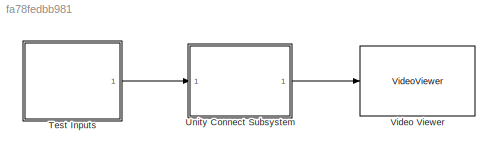
MODEL slx_fa78fedbb981
KIND model
CONFIG AbsTol = auto
CONFIG EnableMultiTasking = off
CONFIG FixedStep = auto
CONFIG MaxStep = auto
CONFIG MinStep = auto
CONFIG RelTol = 1e-3
CONFIG SampleTimeConstraint = Unconstrained
CONFIG SolverName = VariableStepAuto
CONFIG StartTime = 0.0
CONFIG StopTime = 10.0
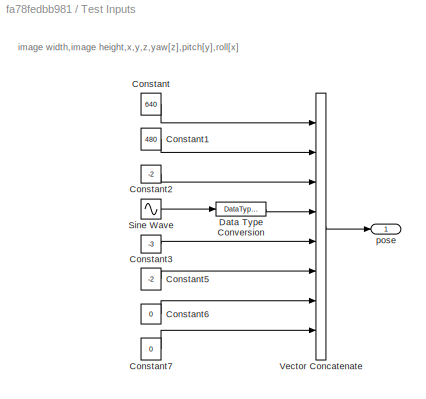
BLOCK [SubSystem] Test Inputs
  Ports = [0, 1]
  RequestExecContextInheritance = off
BLOCK [Constant] Test Inputs/Constant
  OutDataTypeStr = single
  Value = 640
BLOCK [Constant] Test Inputs/Constant1
  OutDataTypeStr = single
  Value = 480
BLOCK [Constant] Test Inputs/Constant2
  OutDataTypeStr = single
  Value = -2
BLOCK [Constant] Test Inputs/Constant3
  OutDataTypeStr = single
  Value = -3
BLOCK [Constant] Test Inputs/Constant5
  OutDataTypeStr = single
  Value = -2
BLOCK [Constant] Test Inputs/Constant6
  OutDataTypeStr = single
  Value = 0
BLOCK [Constant] Test Inputs/Constant7
  OutDataTypeStr = single
  Value = 0
BLOCK [DataTypeConversion] Test Inputs/Data Type Conversion
  OutDataTypeStr = single
  RndMeth = Floor
  SaturateOnIntegerOverflow = off
BLOCK [Sin] Test Inputs/Sine Wave
  Ports = [0, 1]
  SampleTime = 0.01
BLOCK [Concatenate] Test Inputs/Vector Concatenate
  NumInputs = 8
  Ports = [8, 1]
BLOCK [Outport] Test Inputs/pose
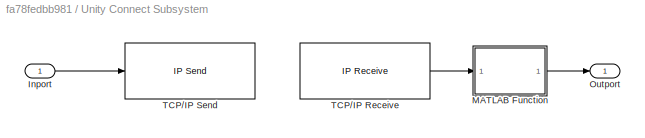
BLOCK [SubSystem] Unity Connect Subsystem
  Ports = [1, 1]
  Priority = 2
  RequestExecContextInheritance = off
BLOCK [Inport] Unity Connect Subsystem/Inport
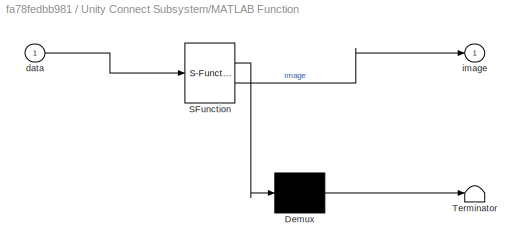
BLOCK [SubSystem] Unity Connect Subsystem/MATLAB Function
  ErrorFcn = Stateflow.Translate.translate
  PermitHierarchicalResolution = ExplicitOnly
  Ports = [1, 1]
  RequestExecContextInheritance = off
  SFBlockType = MATLAB Function
  TreatAsAtomicUnit = on
BLOCK [Demux] Unity Connect Subsystem/MATLAB Function/ Demux 
  Outputs = 1
  Ports = [1, 1]
BLOCK [S-Function] Unity Connect Subsystem/MATLAB Function/ SFunction 
  EnableBusSupport = on
  FunctionName = sf_sfun
  PortCounts = [1 2]
  Ports = [1, 2]
  SFcnIsStateOwnerBlock = off
  SFunctionDeploymentMode = off
  Tag = Stateflow S-Function 2
BLOCK [Terminator] Unity Connect Subsystem/MATLAB Function/ Terminator 
BLOCK [Inport] Unity Connect Subsystem/MATLAB Function/data
BLOCK [Outport] Unity Connect Subsystem/MATLAB Function/image
BLOCK [Outport] Unity Connect Subsystem/Outport
BLOCK [Reference] Unity Connect Subsystem/TCP//IP Receive  REF=instrumentlib/TCP//IP Receive
  Description = receive data from Unity, must set priorty to 2
  Ports = [0, 1]
  Priority = 2
  SourceBlock = instrumentlib/TCP//IP Receive
  SourceProductBaseCode = IC
  SourceType = instrument.system.TCPIPReceive
BLOCK [Reference] Unity Connect Subsystem/TCP//IP Send  REF=instrumentlib/TCP//IP Send
  Description = send data to Unity, must set priority to 1
  Ports = [1]
  Priority = 1
  SourceBlock = instrumentlib/TCP//IP Send
  SourceProductBaseCode = IC
  SourceType = instrument.system.TCPIPSend
BLOCK [VideoViewer] Video Viewer
  FigPos = [2190 892 646 535]
  Ports = [1]
  ScopeSpecificationString = vipscopes.VideoViewerScopeCfg('CurrentConfiguration', extmgr.ConfigurationSet(extmgr.Configuration('Core','General UI',true),extmgr.Configuration('Core','Source UI',true),extmgr.Configuration('Sources','WiredSimulink',true),extmgr.Configuration('Visuals','Video',true),extmgr.Configuration('Tools','Image Navigation Tools',true),extmgr.Configuration('Tools','Image Tool',true),extmgr.Configuration('T...<+76ch>
ANNOTATION Test Inputs: image width,image height,x,y,z,yaw[z],pitch[y],roll[x]
LINE Test Inputs/Constant1:1 -> Test Inputs/Vector Concatenate:2
LINE Test Inputs/Constant2:1 -> Test Inputs/Vector Concatenate:3
LINE Test Inputs/Constant3:1 -> Test Inputs/Vector Concatenate:5
LINE Test Inputs/Constant5:1 -> Test Inputs/Vector Concatenate:6
LINE Test Inputs/Constant6:1 -> Test Inputs/Vector Concatenate:7
LINE Test Inputs/Constant7:1 -> Test Inputs/Vector Concatenate:8
LINE Test Inputs/Constant:1 -> Test Inputs/Vector Concatenate:1
LINE Test Inputs/Data Type Conversion:1 -> Test Inputs/Vector Concatenate:4
LINE Test Inputs/Sine Wave:1 -> Test Inputs/Data Type Conversion:1
LINE Test Inputs/Vector Concatenate:1 -> Test Inputs/pose:1
LINE Test Inputs:1 -> Unity Connect Subsystem:1
LINE Unity Connect Subsystem/Inport:1 -> Unity Connect Subsystem/TCP//IP Send:1
LINE Unity Connect Subsystem/MATLAB Function:1 -> Unity Connect Subsystem/Outport:1
LINE Unity Connect Subsystem/TCP//IP Receive:1 -> Unity Connect Subsystem/MATLAB Function:1
LINE Unity Connect Subsystem:1 -> Video Viewer:1
CHART Unity Connect Subsystem/MATLAB Function states=1 transitions=1
  STATE_LABEL 'eML_blk_kernel()'
  STATE_LABEL "SCRIPT:\nfunction image = fcn(data)\nx = size(data);\nwidth = x(1);\nheight = x(2);\ntemp = reshape(data, [3, width * height]);\nimage = imrotate(reshape(temp', [width, height, 3]), 90);"
CHART  states=0 transitions=0
